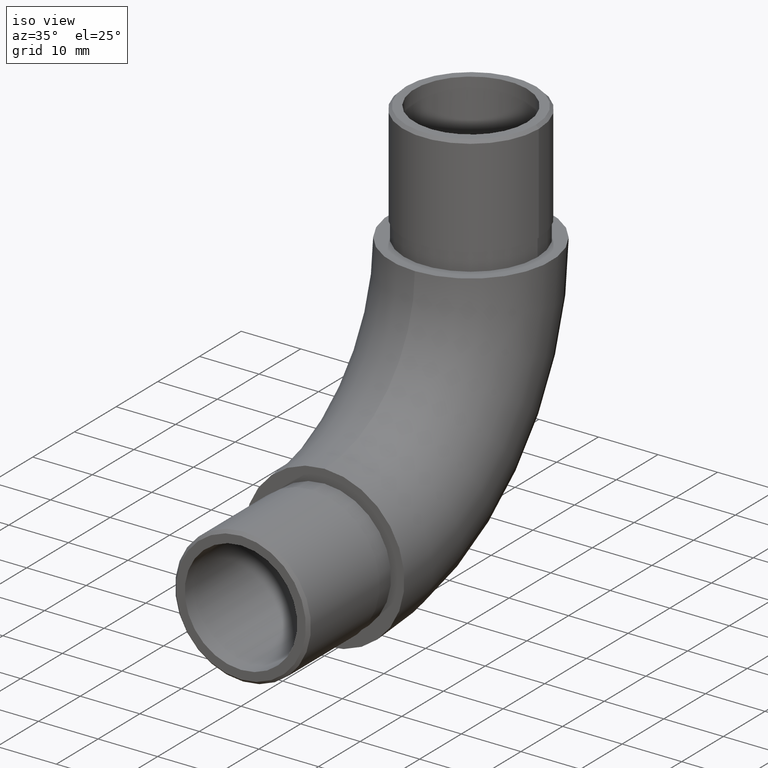
[diagram: clean part render]
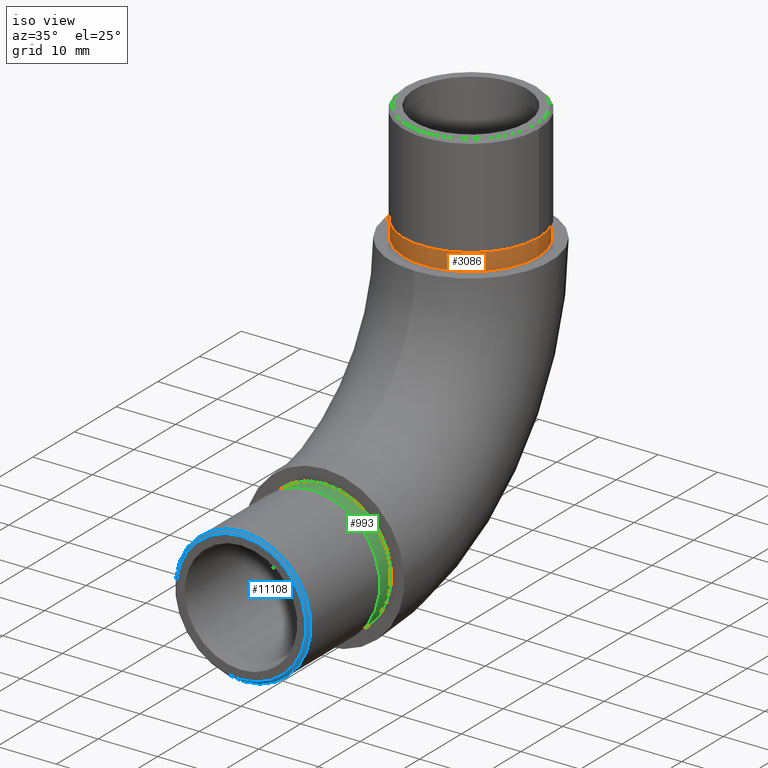
[diagram: same view with three faces highlighted in distinct colors, each labeled with its STEP entity id]
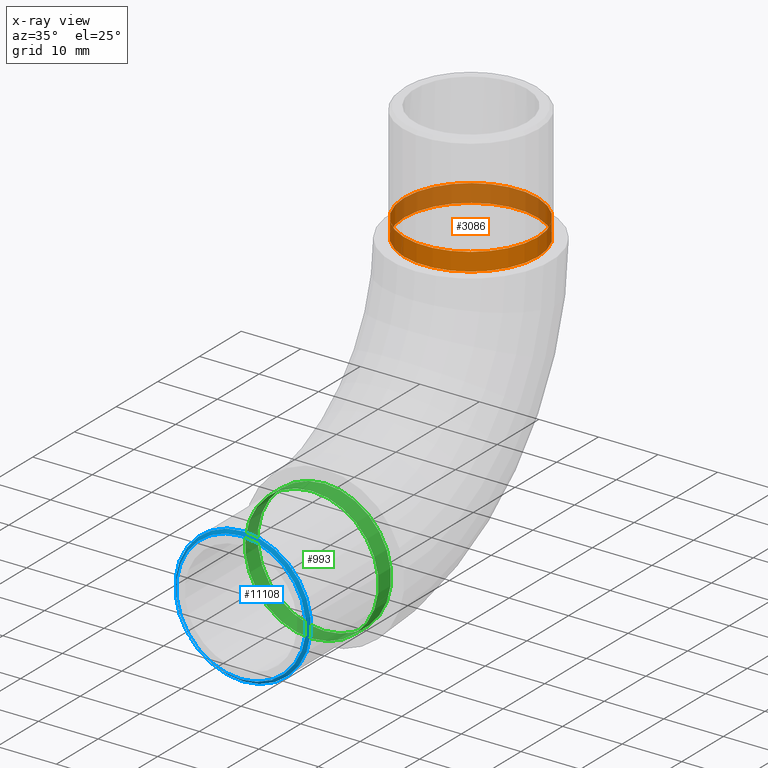
[diagram: x-ray of the same camera — body ghosted, the three highlighted faces saturated]
A machine part, iso view with three faces highlighted in distinct colors.
The next image is the same camera in x-ray (body ghosted, the three faces saturated) — at least one of them is partly hidden behind the body in this view.
Their STEP definitions:

[orange] entity #3086 — the highlighted cylindrical surface (bore or boss wall) has radius 11.2 mm, axis along (-0, -0, -1).
#841 = CARTESIAN_POINT ( 'NONE',  ( 11.20000000000000100, 35.14999999999999900, 51.60000000000000900 ) ) ;
#1133 = AXIS2_PLACEMENT_3D ( 'NONE', #4396, #4281, #1606 ) ;
#1508 = EDGE_LOOP ( 'NONE', ( #2125 ) ) ;
#1606 = DIRECTION ( 'NONE',  ( 1.000000000000000000, 0.0000000000000000000, 0.0000000000000000000 ) ) ;
#1717 = FACE_OUTER_BOUND ( 'NONE', #1508, .T. ) ;
#2125 = ORIENTED_EDGE ( 'NONE', *, *, #6273, .T. ) ;
#2686 = CARTESIAN_POINT ( 'NONE',  ( 11.20000000000000100, 35.14999999999999900, 48.60000000000000100 ) ) ;
#3025 = DIRECTION ( 'NONE',  ( 0.0000000000000000000, 0.0000000000000000000, 1.000000000000000000 ) ) ;
#3086 = ADVANCED_FACE ( 'NONE', ( #10441, #1717 ), #5092, .T. ) ;
#3358 = EDGE_LOOP ( 'NONE', ( #8718 ) ) ;
#3943 = CIRCLE ( 'NONE', #4461, 11.20000000000000100 ) ;
#4281 = DIRECTION ( 'NONE',  ( 0.0000000000000000000, 0.0000000000000000000, 1.000000000000000000 ) ) ;
#4396 = CARTESIAN_POINT ( 'NONE',  ( 0.0000000000000000000, 35.14999999999999900, 48.60000000000000100 ) ) ;
#4461 = AXIS2_PLACEMENT_3D ( 'NONE', #11260, #3025, #10225 ) ;
#5092 = CYLINDRICAL_SURFACE ( 'NONE', #10784, 11.20000000000000100 ) ;
#5130 = EDGE_CURVE ( 'NONE', #8226, #8226, #3943, .T. ) ;
#6057 = CARTESIAN_POINT ( 'NONE',  ( 0.0000000000000000000, 35.14999999999999900, 51.60000000000000900 ) ) ;
#6273 = EDGE_CURVE ( 'NONE', #10048, #10048, #8065, .T. ) ;
#8065 = CIRCLE ( 'NONE', #1133, 11.20000000000000100 ) ;
#8226 = VERTEX_POINT ( 'NONE', #841 ) ;
#8718 = ORIENTED_EDGE ( 'NONE', *, *, #5130, .F. ) ;
#8837 = DIRECTION ( 'NONE',  ( -1.000000000000000000, 0.0000000000000000000, 0.0000000000000000000 ) ) ;
#9788 = DIRECTION ( 'NONE',  ( -0.0000000000000000000, -0.0000000000000000000, -1.000000000000000000 ) ) ;
#10048 = VERTEX_POINT ( 'NONE', #2686 ) ;
#10225 = DIRECTION ( 'NONE',  ( 1.000000000000000000, 0.0000000000000000000, 0.0000000000000000000 ) ) ;
#10441 = FACE_OUTER_BOUND ( 'NONE', #3358, .T. ) ;
#10784 = AXIS2_PLACEMENT_3D ( 'NONE', #6057, #9788, #8837 ) ;
#11260 = CARTESIAN_POINT ( 'NONE',  ( 0.0000000000000000000, 35.14999999999999900, 51.60000000000000900 ) ) ;

[blue] entity #11108 — the highlighted conical surface has half-angle 45 deg.
#597 = FACE_BOUND ( 'NONE', #2329, .T. ) ;
#686 = EDGE_CURVE ( 'NONE', #4987, #4987, #1315, .T. ) ;
#1100 = CARTESIAN_POINT ( 'NONE',  ( 0.0000000000000000000, -19.50000000000000000, 2.049999999999996300 ) ) ;
#1254 = ORIENTED_EDGE ( 'NONE', *, *, #6802, .F. ) ;
#1315 = CIRCLE ( 'NONE', #1877, 11.40000000000000000 ) ;
#1849 = DIRECTION ( 'NONE',  ( 0.0000000000000000000, 1.000000000000000000, 0.0000000000000000000 ) ) ;
#1877 = AXIS2_PLACEMENT_3D ( 'NONE', #3152, #5751, #4101 ) ;
#2329 = EDGE_LOOP ( 'NONE', ( #1254 ) ) ;
#2587 = AXIS2_PLACEMENT_3D ( 'NONE', #9778, #10635, #10723 ) ;
#2757 = CARTESIAN_POINT ( 'NONE',  ( 0.0000000000000000000, -20.00000000000000000, 2.549999999999989600 ) ) ;
#3152 = CARTESIAN_POINT ( 'NONE',  ( 0.0000000000000000000, -19.50000000000000000, 13.44999999999999800 ) ) ;
#3172 = ORIENTED_EDGE ( 'NONE', *, *, #686, .F. ) ;
#3497 = DIRECTION ( 'NONE',  ( 0.0000000000000000000, 0.0000000000000000000, 1.000000000000000000 ) ) ;
#4101 = DIRECTION ( 'NONE',  ( 0.0000000000000000000, 0.0000000000000000000, -1.000000000000000000 ) ) ;
#4439 = CARTESIAN_POINT ( 'NONE',  ( 0.0000000000000000000, -20.00000000000000000, 13.44999999999999800 ) ) ;
#4504 = EDGE_LOOP ( 'NONE', ( #3172 ) ) ;
#4987 = VERTEX_POINT ( 'NONE', #1100 ) ;
#5751 = DIRECTION ( 'NONE',  ( 0.0000000000000000000, 1.000000000000000000, 0.0000000000000000000 ) ) ;
#5888 = CIRCLE ( 'NONE', #2587, 10.90000000000000700 ) ;
#6802 = EDGE_CURVE ( 'NONE', #7086, #7086, #5888, .T. ) ;
#7086 = VERTEX_POINT ( 'NONE', #2757 ) ;
#7358 = AXIS2_PLACEMENT_3D ( 'NONE', #4439, #1849, #3497 ) ;
#8497 = FACE_OUTER_BOUND ( 'NONE', #4504, .T. ) ;
#9778 = CARTESIAN_POINT ( 'NONE',  ( 0.0000000000000000000, -20.00000000000000000, 13.44999999999999800 ) ) ;
#10635 = DIRECTION ( 'NONE',  ( 0.0000000000000000000, -1.000000000000000000, 0.0000000000000000000 ) ) ;
#10723 = DIRECTION ( 'NONE',  ( 0.0000000000000000000, 0.0000000000000000000, -1.000000000000000000 ) ) ;
#10751 = CONICAL_SURFACE ( 'NONE', #7358, 10.90000000000000700, 0.7853981633974415100 ) ;
#11108 = ADVANCED_FACE ( 'NONE', ( #8497, #597 ), #10751, .T. ) ;

[green] entity #993 — the highlighted cylindrical surface (bore or boss wall) has radius 11.2 mm, axis along (-0, 1, -0).
#625 = DIRECTION ( 'NONE',  ( -0.0000000000000000000, 1.000000000000000000, -0.0000000000000000000 ) ) ;
#705 = DIRECTION ( 'NONE',  ( 0.0000000000000000000, 0.0000000000000000000, -1.000000000000000000 ) ) ;
#961 = CIRCLE ( 'NONE', #10277, 11.20000000000000100 ) ;
#993 = ADVANCED_FACE ( 'NONE', ( #10893, #3701 ), #8222, .T. ) ;
#1082 = ORIENTED_EDGE ( 'NONE', *, *, #5423, .T. ) ;
#1685 = ORIENTED_EDGE ( 'NONE', *, *, #10471, .F. ) ;
#1890 = VERTEX_POINT ( 'NONE', #10824 ) ;
#2707 = DIRECTION ( 'NONE',  ( -0.0000000000000000000, -1.000000000000000000, -0.0000000000000000000 ) ) ;
#3701 = FACE_OUTER_BOUND ( 'NONE', #8410, .T. ) ;
#3957 = AXIS2_PLACEMENT_3D ( 'NONE', #9700, #10685, #705 ) ;
#5423 = EDGE_CURVE ( 'NONE', #1890, #1890, #961, .T. ) ;
#6073 = CARTESIAN_POINT ( 'NONE',  ( 0.0000000000000000000, -3.000000000000000000, 13.44999999999999800 ) ) ;
#6854 = EDGE_LOOP ( 'NONE', ( #1685 ) ) ;
#7124 = CARTESIAN_POINT ( 'NONE',  ( 0.0000000000000000000, -3.000000000000000000, 2.249999999999995100 ) ) ;
#7905 = AXIS2_PLACEMENT_3D ( 'NONE', #6073, #625, #8897 ) ;
#8212 = DIRECTION ( 'NONE',  ( 0.0000000000000000000, 0.0000000000000000000, 1.000000000000000000 ) ) ;
#8222 = CYLINDRICAL_SURFACE ( 'NONE', #7905, 11.20000000000000100 ) ;
#8410 = EDGE_LOOP ( 'NONE', ( #1082 ) ) ;
#8897 = DIRECTION ( 'NONE',  ( 0.0000000000000000000, 0.0000000000000000000, 1.000000000000000000 ) ) ;
#9700 = CARTESIAN_POINT ( 'NONE',  ( 0.0000000000000000000, -3.000000000000000000, 13.44999999999999800 ) ) ;
#10062 = CARTESIAN_POINT ( 'NONE',  ( 0.0000000000000000000, 0.0000000000000000000, 13.44999999999999800 ) ) ;
#10277 = AXIS2_PLACEMENT_3D ( 'NONE', #10062, #2707, #8212 ) ;
#10471 = EDGE_CURVE ( 'NONE', #11607, #11607, #11606, .T. ) ;
#10685 = DIRECTION ( 'NONE',  ( 0.0000000000000000000, -1.000000000000000000, 0.0000000000000000000 ) ) ;
#10824 = CARTESIAN_POINT ( 'NONE',  ( 0.0000000000000000000, 0.0000000000000000000, 24.64999999999999900 ) ) ;
#10893 = FACE_OUTER_BOUND ( 'NONE', #6854, .T. ) ;
#11606 = CIRCLE ( 'NONE', #3957, 11.20000000000000100 ) ;
#11607 = VERTEX_POINT ( 'NONE', #7124 ) ;